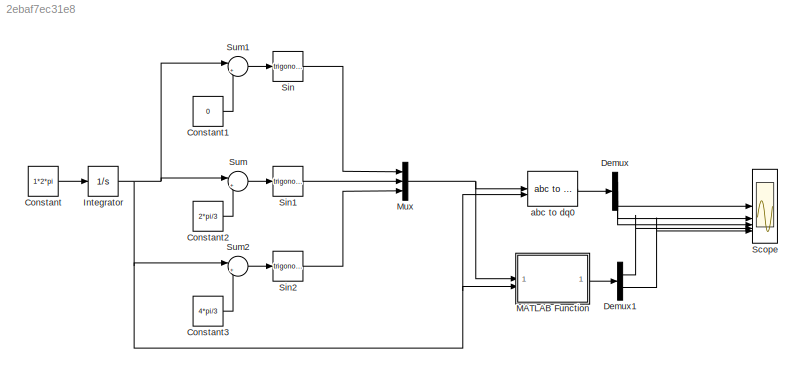
MODEL slx_2ebaf7ec31e8
KIND model
CONFIG AbsTol = auto
CONFIG EnableMultiTasking = off
CONFIG FixedStep = auto
CONFIG MaxStep = auto
CONFIG MinStep = auto
CONFIG RelTol = 1e-3
CONFIG SampleTimeConstraint = Unconstrained
CONFIG SolverName = VariableStepAuto
CONFIG StartTime = 0.0
CONFIG StopTime = 10.0
BLOCK [Constant] Constant
  Value = 1*2*pi
BLOCK [Constant] Constant1
  Value = 0
BLOCK [Constant] Constant2
  Value = 2*pi/3
BLOCK [Constant] Constant3
  Value = 4*pi/3
BLOCK [Demux] Demux
  Outputs = 3
BLOCK [Demux] Demux1
  Outputs = 2
BLOCK [Integrator] Integrator
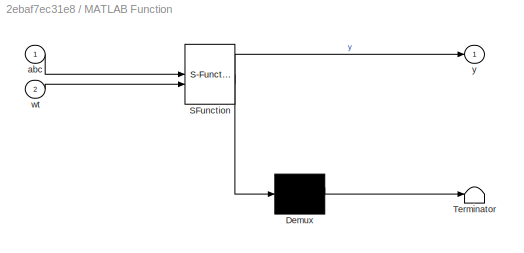
BLOCK [SubSystem] MATLAB Function
  ErrorFcn = Stateflow.Translate.translate
  PermitHierarchicalResolution = ExplicitOnly
  SFBlockType = MATLAB Function
  TreatAsAtomicUnit = on
BLOCK [Demux] MATLAB Function/ Demux 
  Outputs = 1
BLOCK [S-Function] MATLAB Function/ SFunction 
  EnableBusSupport = on
  FunctionName = sf_sfun
  PortCounts = [2 2]
  SFcnIsStateOwnerBlock = off
  SFunctionDeploymentMode = off
  Tag = Stateflow S-Function 2
BLOCK [Terminator] MATLAB Function/ Terminator 
BLOCK [Inport] MATLAB Function/abc
BLOCK [Inport] MATLAB Function/wt
  Port = 2
BLOCK [Outport] MATLAB Function/y
BLOCK [Mux] Mux
  DisplayOption = bar
  Inputs = 3
BLOCK [Scope] Scope
  Floating = off
  NumInputPorts = 6
  ScopeSpecificationString = Simulink.scopes.TimeScopeBlockCfg('CurrentConfiguration', extmgr.ConfigurationSet(extmgr.Configuration('Core','General UI',true),extmgr.Configuration('Core','Source UI',true),extmgr.Configuration('Sources','WiredSimulink',true),extmgr.Configuration('Visuals','Time Domain',true,'SerializedDisplays',{struct('MinYLimReal','-1.03578','MaxYLimReal','1.2262','YLabelReal','','MinYLimMag','0.00000','MaxYL...<+4776ch>
BLOCK [Trigonometry] Sin
BLOCK [Trigonometry] Sin1
BLOCK [Trigonometry] Sin2
BLOCK [Sum] Sum
  Inputs = |++
BLOCK [Sum] Sum1
  Inputs = |++
BLOCK [Sum] Sum2
  Inputs = |++
BLOCK [Reference] abc to dq0  REF=spsabctodq0Lib/abc to dq0
  LibrarySourceBlock = sps_lib/Control/abc to dq0
  SourceBlock = spsabctodq0Lib/abc to dq0
  SourceType = abc to dq0 Transformation
LINE Constant1:1 -> Sum1:2
LINE Constant2:1 -> Sum:2
LINE Constant3:1 -> Sum2:2
LINE Constant:1 -> Integrator:1
LINE Demux1:1 -> Scope:4
LINE Demux1:2 -> Scope:5
LINE Demux:1 -> Scope:1
LINE Demux:2 -> Scope:2
LINE Demux:3 -> Scope:3
NET Integrator:1 -> MATLAB Function:2, Sum1:1, Sum2:1, Sum:1, abc to dq0:2
LINE MATLAB Function:1 -> Demux1:1
NET Mux:1 -> MATLAB Function:1, abc to dq0:1
LINE Sin1:1 -> Mux:2
LINE Sin2:1 -> Mux:3
LINE Sin:1 -> Mux:1
LINE Sum1:1 -> Sin:1
LINE Sum2:1 -> Sin2:1
LINE Sum:1 -> Sin1:1
LINE abc to dq0:1 -> Demux:1
note: NET lines group one-source signal fan-out (src -> all destinations, sorted); 1:1 wires keep LINE
CHART MATLAB Function states=1 transitions=1
  STATE_LABEL 'eML_blk_kernel()'
  STATE_LABEL 'SCRIPT:\nfunction y = Rotate(abc,wt)\n\nC = [cos(wt) cos(wt-2/3*pi) cos(wt-4/3*pi);\n    -1*sin(wt) -1*sin(wt-2/3*pi) -1*sin(wt-4/3*pi)];\n\ny = sqrt(2/3)*C*[abc(1);abc(2);abc(3)];\n\n'
CHART  states=0 transitions=0
